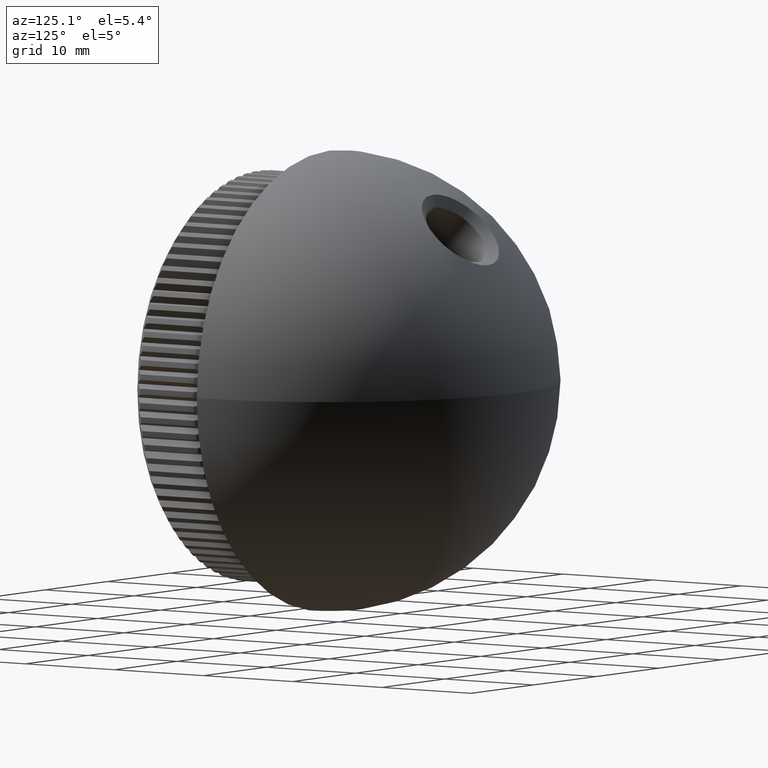
[diagram: clean part render]
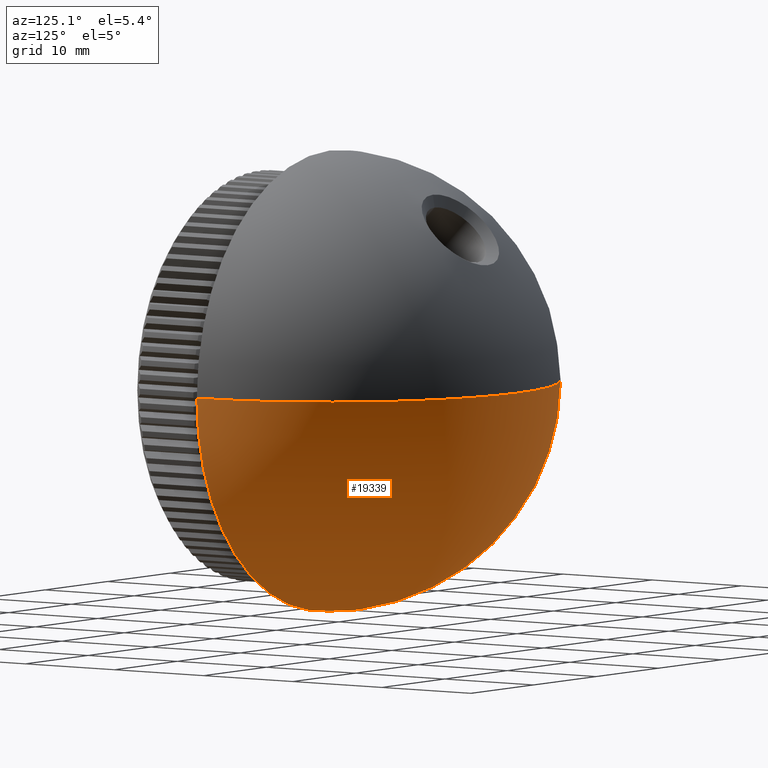
[diagram: same view with one face highlighted and labeled with its STEP entity id]
A machine part, auxiliary view. The second image highlights one B-rep face of the part: STEP entity #19339.
In plain terms, the highlighted spherical surface has radius 21.2 mm.
Its self-contained STEP definition (entity closure, byte-faithful):
#188 = VERTEX_POINT ( 'NONE', #15795 ) ;
#899 = DIRECTION ( 'NONE',  ( -1.000000000000000000, 0.0000000000000000000, 0.0000000000000000000 ) ) ;
#2469 = EDGE_CURVE ( 'NONE', #188, #23157, #9374, .T. ) ;
#4372 = AXIS2_PLACEMENT_3D ( 'NONE', #5968, #16710, #5890 ) ;
#4519 = CARTESIAN_POINT ( 'NONE',  ( -1.149114390993522900E-027, 8.999999999999996400, 0.0000000000000000000 ) ) ;
#5890 = DIRECTION ( 'NONE',  ( 1.000000000000000000, 0.0000000000000000000, 0.0000000000000000000 ) ) ;
#5968 = CARTESIAN_POINT ( 'NONE',  ( -3.424513085742286300E-028, 8.999999999999998200, 0.0000000000000000000 ) ) ;
#6723 = EDGE_CURVE ( 'NONE', #188, #13650, #20190, .T. ) ;
#7916 = DIRECTION ( 'NONE',  ( 0.0000000000000000000, 0.0000000000000000000, -1.000000000000000000 ) ) ;
#9104 = DIRECTION ( 'NONE',  ( 0.0000000000000000000, -0.0000000000000000000, 1.000000000000000000 ) ) ;
#9374 = CIRCLE ( 'NONE', #22347, 21.20000000000000300 ) ;
#9611 = CARTESIAN_POINT ( 'NONE',  ( 21.20000000000000300, 8.999999999999998200, 0.0000000000000000000 ) ) ;
#13352 = AXIS2_PLACEMENT_3D ( 'NONE', #4519, #7916, #899 ) ;
#13650 = VERTEX_POINT ( 'NONE', #9611 ) ;
#14824 = CARTESIAN_POINT ( 'NONE',  ( -1.149114390993522900E-027, 8.999999999999996400, 0.0000000000000000000 ) ) ;
#15668 = ORIENTED_EDGE ( 'NONE', *, *, #6723, .T. ) ;
#15795 = CARTESIAN_POINT ( 'NONE',  ( 1.298125607094238800E-015, 30.19999999999999900, 0.0000000000000000000 ) ) ;
#16710 = DIRECTION ( 'NONE',  ( 3.805014539713652200E-029, -1.000000000000000000, -0.0000000000000000000 ) ) ;
#16754 = CARTESIAN_POINT ( 'NONE',  ( -21.20000000000000300, 8.999999999999998200, 2.596251214192388800E-015 ) ) ;
#17335 = EDGE_CURVE ( 'NONE', #23157, #13650, #23181, .T. ) ;
#17874 = CARTESIAN_POINT ( 'NONE',  ( -1.149114390993522900E-027, 8.999999999999996400, 0.0000000000000000000 ) ) ;
#18047 = EDGE_LOOP ( 'NONE', ( #22813, #15668, #23308 ) ) ;
#18200 = AXIS2_PLACEMENT_3D ( 'NONE', #17874, #9104, #21487 ) ;
#18628 = SPHERICAL_SURFACE ( 'NONE', #18200, 21.20000000000000300 ) ;
#19199 = FACE_OUTER_BOUND ( 'NONE', #18047, .T. ) ;
#19339 = ADVANCED_FACE ( 'NONE', ( #19199 ), #18628, .T. ) ;
#20190 = CIRCLE ( 'NONE', #13352, 21.20000000000000300 ) ;
#21487 = DIRECTION ( 'NONE',  ( 1.000000000000000000, 0.0000000000000000000, 0.0000000000000000000 ) ) ;
#22179 = DIRECTION ( 'NONE',  ( 1.000000000000000000, 0.0000000000000000000, -1.224646799147353200E-016 ) ) ;
#22260 = DIRECTION ( 'NONE',  ( 1.224646799147353200E-016, 4.659798876769463300E-045, 1.000000000000000000 ) ) ;
#22347 = AXIS2_PLACEMENT_3D ( 'NONE', #14824, #22260, #22179 ) ;
#22813 = ORIENTED_EDGE ( 'NONE', *, *, #2469, .F. ) ;
#23157 = VERTEX_POINT ( 'NONE', #16754 ) ;
#23181 = CIRCLE ( 'NONE', #4372, 21.20000000000000300 ) ;
#23308 = ORIENTED_EDGE ( 'NONE', *, *, #17335, .F. ) ;